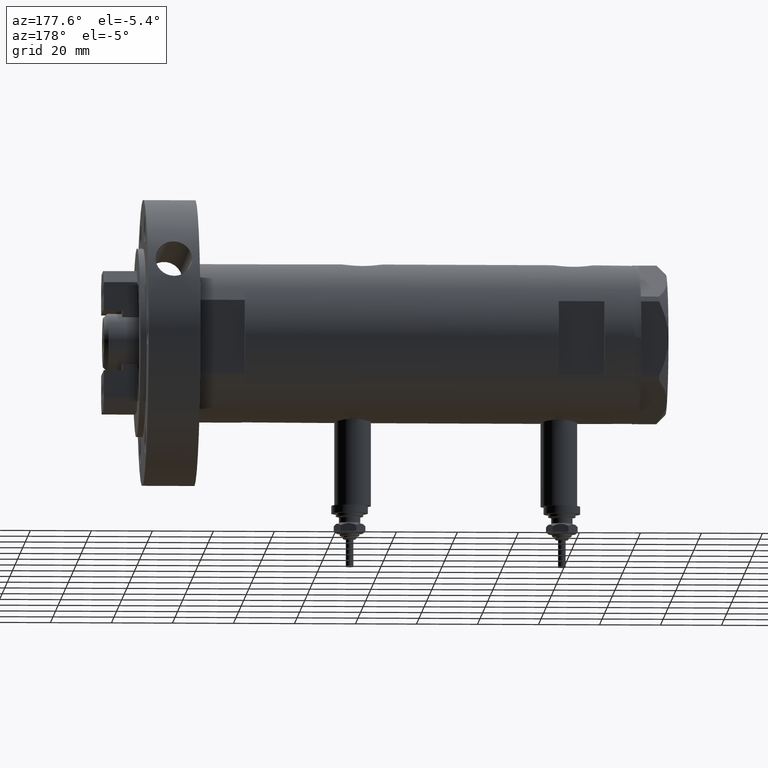
[diagram: clean part render]
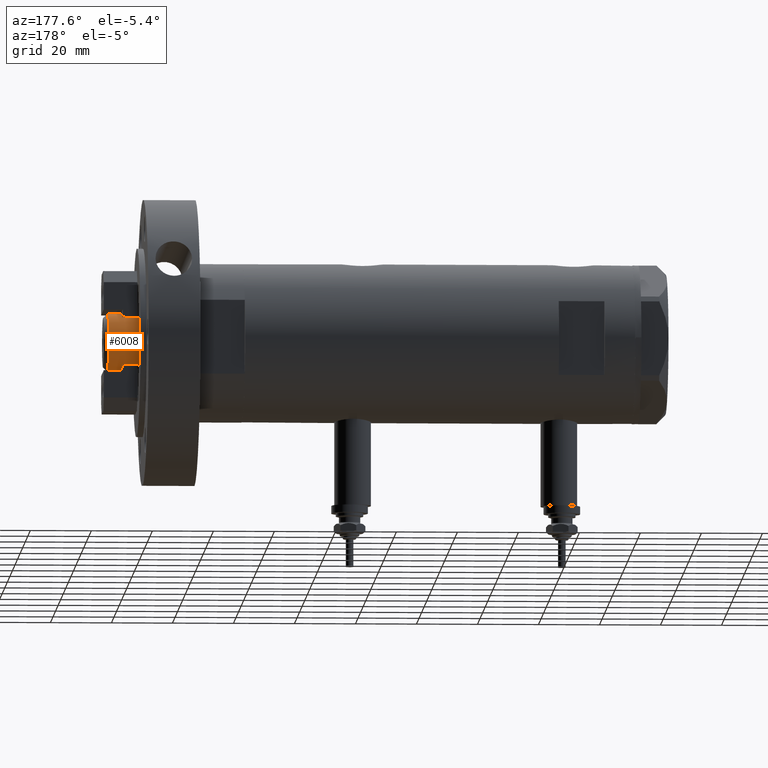
[diagram: same view with one face highlighted and labeled with its STEP entity id]
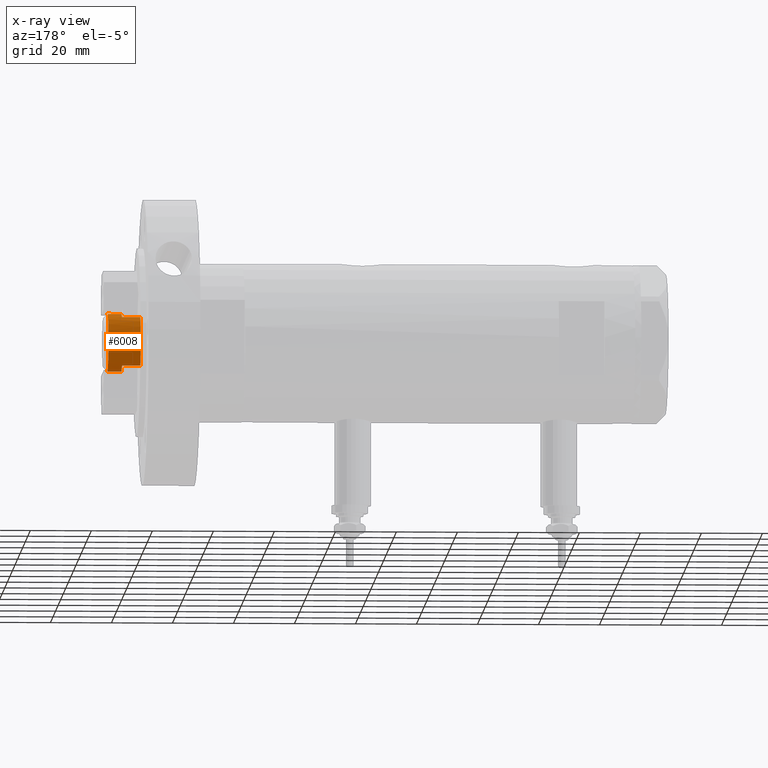
[diagram: x-ray of the same camera — body ghosted, the highlighted face saturated]
A machine part, auxiliary view. The second image highlights one B-rep face of the part: STEP entity #6008.
The next image is the same camera in x-ray: the body ghosted, the highlighted face saturated — about 0% of this face is hidden behind the body in this view.
In plain terms, the highlighted cylindrical surface (edge-blend (fillet) strip) has radius 9.5 mm, axis along (-1, -0, 0).
Its self-contained STEP definition (entity closure, byte-faithful):
#42 = CARTESIAN_POINT ( 'NONE',  ( -7.982950582334830791, 5.149999999999999467, 143.5999999999999943 ) ) ;
#487 = ORIENTED_EDGE ( 'NONE', *, *, #5702, .F. ) ;
#573 = LINE ( 'NONE', #5815, #909 ) ;
#633 = AXIS2_PLACEMENT_3D ( 'NONE', #2055, #1393, #8080 ) ;
#692 = ORIENTED_EDGE ( 'NONE', *, *, #3438, .T. ) ;
#876 = VECTOR ( 'NONE', #7435, 1000.000000000000000 ) ;
#909 = VECTOR ( 'NONE', #7915, 1000.000000000000000 ) ;
#1053 = VECTOR ( 'NONE', #1191, 1000.000000000000000 ) ;
#1057 = FACE_OUTER_BOUND ( 'NONE', #2627, .T. ) ;
#1191 = DIRECTION ( 'NONE',  ( -0.000000000000000000, -0.000000000000000000, -1.000000000000000000 ) ) ;
#1393 = DIRECTION ( 'NONE',  ( 0.000000000000000000, 0.000000000000000000, 1.000000000000000000 ) ) ;
#1426 = ORIENTED_EDGE ( 'NONE', *, *, #6289, .T. ) ;
#1619 = CIRCLE ( 'NONE', #633, 9.500000000000000000 ) ;
#1679 = VERTEX_POINT ( 'NONE', #1986 ) ;
#1865 = DIRECTION ( 'NONE',  ( 1.000000000000000000, 0.000000000000000000, 0.000000000000000000 ) ) ;
#1986 = CARTESIAN_POINT ( 'NONE',  ( -9.500000000000000000, 0.000000000000000000, 143.5999999999999943 ) ) ;
#2055 = CARTESIAN_POINT ( 'NONE',  ( 0.000000000000000000, 0.000000000000000000, 143.5999999999999943 ) ) ;
#2242 = CARTESIAN_POINT ( 'NONE',  ( 0.000000000000000000, 0.000000000000000000, 143.5999999999999943 ) ) ;
#2361 = CARTESIAN_POINT ( 'NONE',  ( -7.982950582334829015, 5.150000000000015454, 137.5999999999999943 ) ) ;
#2367 = DIRECTION ( 'NONE',  ( -1.000000000000000000, 0.000000000000000000, 0.000000000000000000 ) ) ;
#2467 = DIRECTION ( 'NONE',  ( 1.000000000000000000, 0.000000000000000000, 0.000000000000000000 ) ) ;
#2543 = CARTESIAN_POINT ( 'NONE',  ( 9.500000000000001776, 1.163414459189985682E-15, 148.1999999999999886 ) ) ;
#2601 = VERTEX_POINT ( 'NONE', #6589 ) ;
#2627 = EDGE_LOOP ( 'NONE', ( #7744, #4448, #1426, #3143, #6192, #5028, #692, #487 ) ) ;
#2749 = CARTESIAN_POINT ( 'NONE',  ( 9.500000000000000000, 1.163414459189985485E-15, 143.5999999999999943 ) ) ;
#3143 = ORIENTED_EDGE ( 'NONE', *, *, #4494, .T. ) ;
#3168 = CARTESIAN_POINT ( 'NONE',  ( 0.000000000000000000, 0.000000000000000000, 143.5999999999999943 ) ) ;
#3438 = EDGE_CURVE ( 'NONE', #8474, #1679, #8454, .T. ) ;
#3445 = VERTEX_POINT ( 'NONE', #5946 ) ;
#3536 = EDGE_CURVE ( 'NONE', #7360, #5288, #6820, .T. ) ;
#3995 = CARTESIAN_POINT ( 'NONE',  ( 9.500000000000001776, 1.163414459189985682E-15, 143.5999999999999943 ) ) ;
#4442 = CIRCLE ( 'NONE', #5435, 9.500000000000001776 ) ;
#4448 = ORIENTED_EDGE ( 'NONE', *, *, #3536, .T. ) ;
#4494 = EDGE_CURVE ( 'NONE', #2601, #5237, #7539, .T. ) ;
#4547 = CARTESIAN_POINT ( 'NONE',  ( 7.982950582334830791, 5.149999999999999467, 137.5999999999999943 ) ) ;
#4848 = CIRCLE ( 'NONE', #7667, 9.500000000000008882 ) ;
#4968 = CYLINDRICAL_SURFACE ( 'NONE', #8063, 9.500000000000001776 ) ;
#5028 = ORIENTED_EDGE ( 'NONE', *, *, #5756, .F. ) ;
#5125 = DIRECTION ( 'NONE',  ( 0.000000000000000000, 0.000000000000000000, -1.000000000000000000 ) ) ;
#5237 = VERTEX_POINT ( 'NONE', #4547 ) ;
#5288 = VERTEX_POINT ( 'NONE', #2749 ) ;
#5388 = VECTOR ( 'NONE', #5570, 1000.000000000000000 ) ;
#5435 = AXIS2_PLACEMENT_3D ( 'NONE', #7883, #5125, #1865 ) ;
#5462 = DIRECTION ( 'NONE',  ( 0.000000000000000000, 0.000000000000000000, 1.000000000000000000 ) ) ;
#5502 = CARTESIAN_POINT ( 'NONE',  ( 0.000000000000000000, 0.000000000000000000, 137.5999999999999943 ) ) ;
#5570 = DIRECTION ( 'NONE',  ( -0.000000000000000000, -0.000000000000000000, -1.000000000000000000 ) ) ;
#5616 = CARTESIAN_POINT ( 'NONE',  ( 7.982950582334830791, 5.149999999999999467, 143.5999999999999943 ) ) ;
#5702 = EDGE_CURVE ( 'NONE', #3445, #1679, #573, .T. ) ;
#5756 = EDGE_CURVE ( 'NONE', #8474, #7578, #7259, .T. ) ;
#5815 = CARTESIAN_POINT ( 'NONE',  ( -9.500000000000001776, 0.000000000000000000, 143.5999999999999943 ) ) ;
#5946 = CARTESIAN_POINT ( 'NONE',  ( -9.500000000000001776, 0.000000000000000000, 148.1999999999999886 ) ) ;
#6008 = ADVANCED_FACE ( 'NONE', ( #1057 ), #4968, .T. ) ;
#6192 = ORIENTED_EDGE ( 'NONE', *, *, #7088, .T. ) ;
#6289 = EDGE_CURVE ( 'NONE', #5288, #2601, #1619, .T. ) ;
#6472 = CARTESIAN_POINT ( 'NONE',  ( -7.982950582334830791, 5.149999999999999467, 143.5999999999999943 ) ) ;
#6589 = CARTESIAN_POINT ( 'NONE',  ( 7.982950582334830791, 5.149999999999999467, 143.5999999999999943 ) ) ;
#6630 = AXIS2_PLACEMENT_3D ( 'NONE', #3168, #8491, #2467 ) ;
#6820 = LINE ( 'NONE', #3995, #876 ) ;
#7088 = EDGE_CURVE ( 'NONE', #5237, #7578, #4848, .T. ) ;
#7259 = LINE ( 'NONE', #6472, #1053 ) ;
#7360 = VERTEX_POINT ( 'NONE', #2543 ) ;
#7435 = DIRECTION ( 'NONE',  ( -0.000000000000000000, -0.000000000000000000, -1.000000000000000000 ) ) ;
#7539 = LINE ( 'NONE', #5616, #5388 ) ;
#7578 = VERTEX_POINT ( 'NONE', #2361 ) ;
#7667 = AXIS2_PLACEMENT_3D ( 'NONE', #5502, #5462, #8137 ) ;
#7744 = ORIENTED_EDGE ( 'NONE', *, *, #8176, .T. ) ;
#7883 = CARTESIAN_POINT ( 'NONE',  ( 0.000000000000000000, 0.000000000000000000, 148.1999999999999886 ) ) ;
#7915 = DIRECTION ( 'NONE',  ( -0.000000000000000000, -0.000000000000000000, -1.000000000000000000 ) ) ;
#8063 = AXIS2_PLACEMENT_3D ( 'NONE', #2242, #8392, #2367 ) ;
#8080 = DIRECTION ( 'NONE',  ( 1.000000000000000000, 0.000000000000000000, 0.000000000000000000 ) ) ;
#8137 = DIRECTION ( 'NONE',  ( 1.000000000000000000, 0.000000000000000000, 0.000000000000000000 ) ) ;
#8176 = EDGE_CURVE ( 'NONE', #3445, #7360, #4442, .T. ) ;
#8392 = DIRECTION ( 'NONE',  ( -0.000000000000000000, -0.000000000000000000, -1.000000000000000000 ) ) ;
#8454 = CIRCLE ( 'NONE', #6630, 9.500000000000000000 ) ;
#8474 = VERTEX_POINT ( 'NONE', #42 ) ;
#8491 = DIRECTION ( 'NONE',  ( 0.000000000000000000, 0.000000000000000000, 1.000000000000000000 ) ) ;